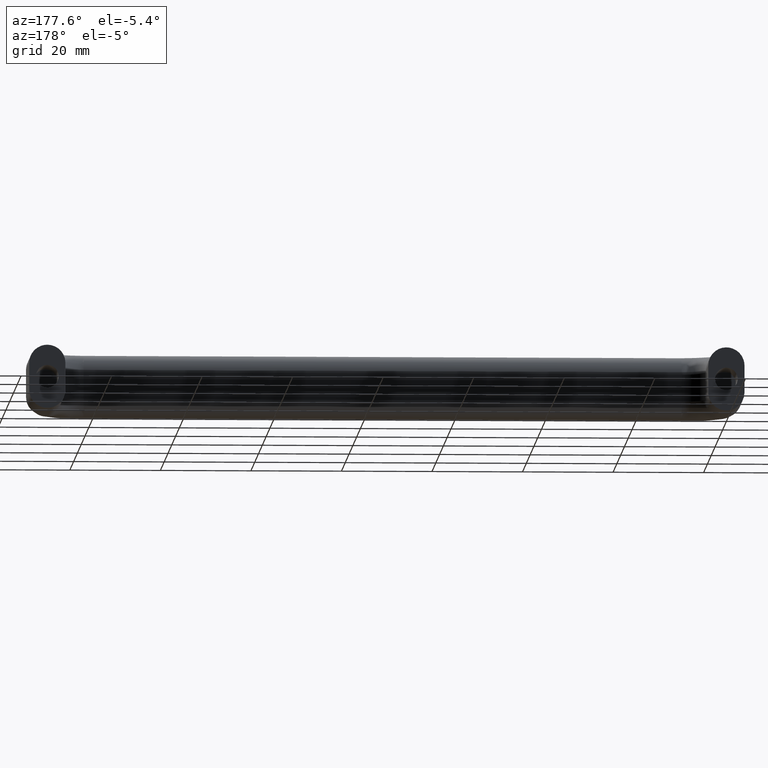
[diagram: clean part render]
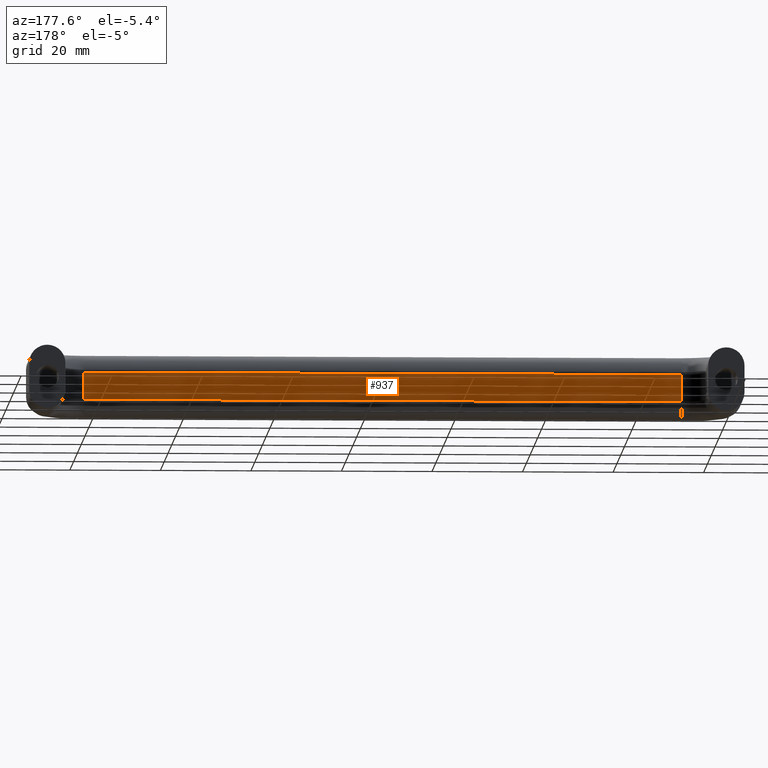
[diagram: same view with one face highlighted and labeled with its STEP entity id]
A machine part, auxiliary view. The second image highlights one B-rep face of the part: STEP entity #937.
In plain terms, the highlighted face is a freeform B-spline surface patch.
Its self-contained STEP definition (entity closure, byte-faithful):
#649=CARTESIAN_POINT('',(141.0,-22.0,-3.0));
#650=VERTEX_POINT('',#649);
#746=CARTESIAN_POINT('',(141.0,-22.0,3.0));
#747=VERTEX_POINT('',#746);
#796=CARTESIAN_POINT('',(141.0,-22.0,-3.0));
#797=CARTESIAN_POINT('',(141.0,-22.0,3.0));
#798=QUASI_UNIFORM_CURVE('',1,(#796,#797),.UNSPECIFIED.,.F.,.U.);
#799=EDGE_CURVE('',#650,#747,#798,.T.);
#830=CARTESIAN_POINT('',(9.0,-22.0,-3.0));
#831=VERTEX_POINT('',#830);
#847=CARTESIAN_POINT('',(9.0,-22.0,-3.0));
#848=CARTESIAN_POINT('',(141.0,-22.0,-3.0));
#849=QUASI_UNIFORM_CURVE('',1,(#847,#848),.UNSPECIFIED.,.F.,.U.);
#850=EDGE_CURVE('',#831,#650,#849,.T.);
#897=CARTESIAN_POINT('',(9.0,-22.0,3.0));
#898=VERTEX_POINT('',#897);
#899=CARTESIAN_POINT('',(9.0,-22.0,3.0));
#900=CARTESIAN_POINT('',(141.0,-22.0,3.0));
#901=QUASI_UNIFORM_CURVE('',1,(#899,#900),.UNSPECIFIED.,.F.,.U.);
#902=EDGE_CURVE('',#898,#747,#901,.T.);
#922=CARTESIAN_POINT('',(2.406600255841622,-22.0,-3.299699988370837));
#923=CARTESIAN_POINT('',(2.406600255841622,-22.0,3.299700149303377));
#924=CARTESIAN_POINT('',(147.593403284674310,-22.0,-3.299699988370837));
#925=CARTESIAN_POINT('',(147.593403284674310,-22.0,3.299700149303377));
#926=B_SPLINE_SURFACE_WITH_KNOTS('',1,1,((#922,#924),(#923,#925)),.UNSPECIFIED.,.F.,.F.,.U.,(2,2),(2,2),(0.0,6.599400137674214),(0.0,145.186803028832710),.UNSPECIFIED.);
#927=ORIENTED_EDGE('',*,*,#902,.T.);
#928=ORIENTED_EDGE('',*,*,#799,.F.);
#929=ORIENTED_EDGE('',*,*,#850,.F.);
#930=CARTESIAN_POINT('',(9.0,-22.0,-3.0));
#931=CARTESIAN_POINT('',(9.0,-22.0,3.0));
#932=QUASI_UNIFORM_CURVE('',1,(#930,#931),.UNSPECIFIED.,.F.,.U.);
#933=EDGE_CURVE('',#831,#898,#932,.T.);
#934=ORIENTED_EDGE('',*,*,#933,.T.);
#935=EDGE_LOOP('',(#927,#928,#929,#934));
#936=FACE_OUTER_BOUND('',#935,.T.);
#937=ADVANCED_FACE('',(#936),#926,.T.);